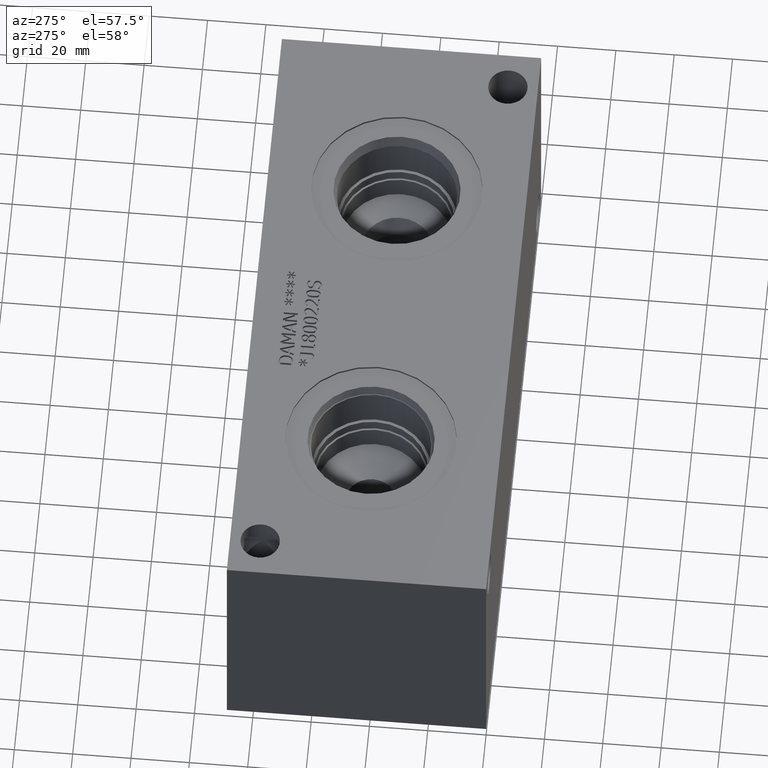
[diagram: clean part render]
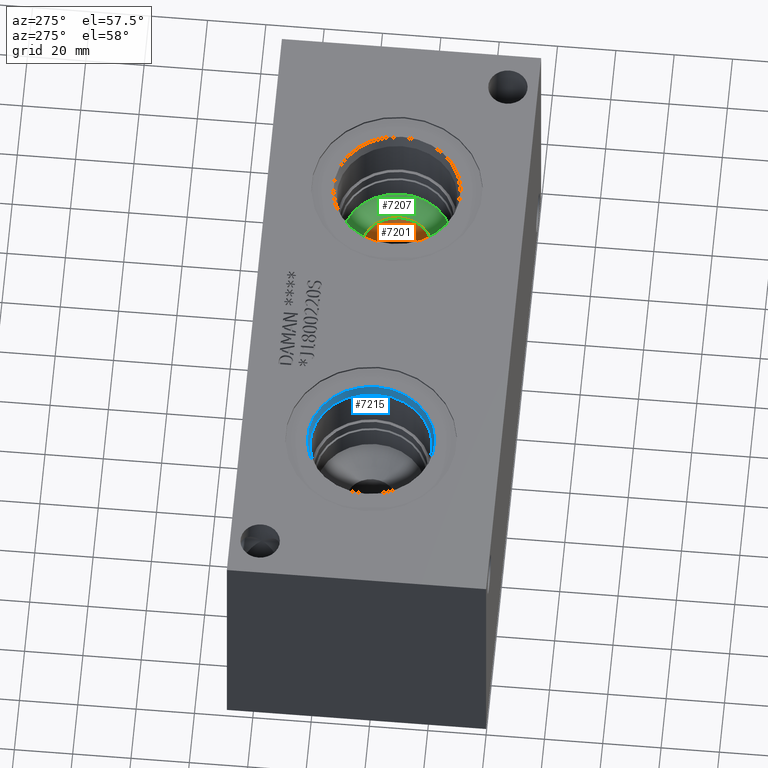
[diagram: same view with three faces highlighted in distinct colors, each labeled with its STEP entity id]
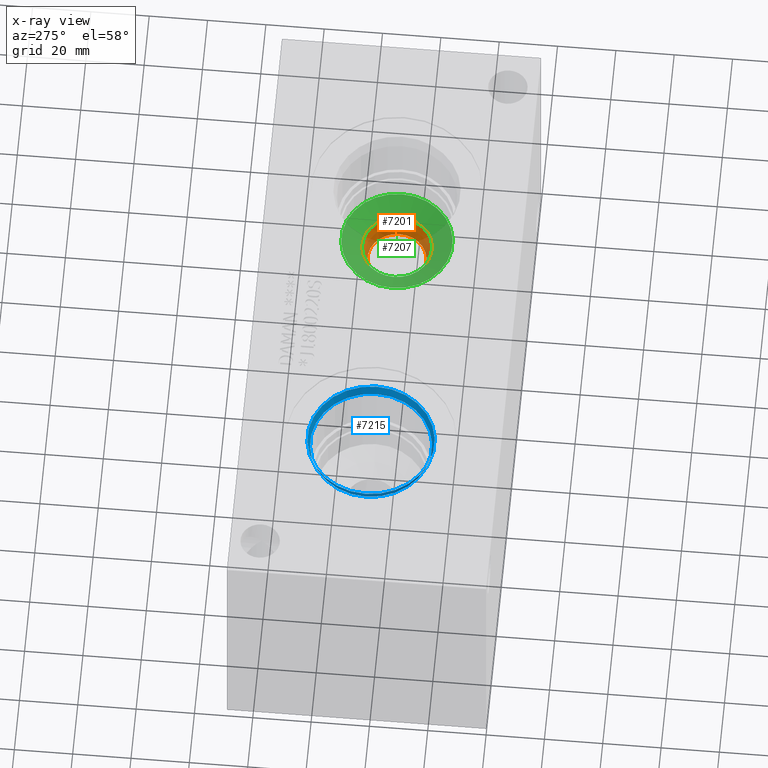
[diagram: x-ray of the same camera — body ghosted, the three highlighted faces saturated]
A machine part, auxiliary view with three faces highlighted in distinct colors.
The next image is the same camera in x-ray (body ghosted, the three faces saturated) — at least one of them is partly hidden behind the body in this view.
Their STEP definitions:

[orange] entity #7201 — the highlighted conical surface has half-angle 15 deg.
#24=CONICAL_SURFACE('',#7545,10.87755,0.261799387799149);
#112=CIRCLE('',#7522,10.059133827333);
#127=CIRCLE('',#7546,12.0409831087152);
#863=FACE_OUTER_BOUND('',#1267,.T.);
#1267=EDGE_LOOP('',(#6218,#6219,#6220,#6221));
#1970=LINE('',#12317,#2661);
#2661=VECTOR('',#8880,10.87755);
#3303=VERTEX_POINT('',#12269);
#3318=VERTEX_POINT('',#12315);
#4276=EDGE_CURVE('',#3303,#3303,#112,.T.);
#4297=EDGE_CURVE('',#3318,#3318,#127,.T.);
#4298=EDGE_CURVE('',#3318,#3303,#1970,.T.);
#6218=ORIENTED_EDGE('',*,*,#4297,.F.);
#6219=ORIENTED_EDGE('',*,*,#4298,.T.);
#6220=ORIENTED_EDGE('',*,*,#4276,.T.);
#6221=ORIENTED_EDGE('',*,*,#4298,.F.);
#7201=ADVANCED_FACE('',(#863),#24,.F.);
#7522=AXIS2_PLACEMENT_3D('',#12271,#8824,#8825);
#7545=AXIS2_PLACEMENT_3D('',#12314,#8876,#8877);
#7546=AXIS2_PLACEMENT_3D('',#12316,#8878,#8879);
#8824=DIRECTION('center_axis',(0.,0.,-1.));
#8825=DIRECTION('ref_axis',(1.,0.,0.));
#8876=DIRECTION('center_axis',(0.,0.,1.));
#8877=DIRECTION('ref_axis',(1.,0.,0.));
#8878=DIRECTION('center_axis',(0.,0.,-1.));
#8879=DIRECTION('ref_axis',(1.,0.,0.));
#8880=DIRECTION('',(0.258819045102521,3.16961915143176E-17,-0.965925826289068));
#12269=CARTESIAN_POINT('',(148.690866172667,44.45,44.45));
#12271=CARTESIAN_POINT('Origin',(158.75,44.45,44.45));
#12314=CARTESIAN_POINT('Origin',(158.75,44.45,47.5043707381292));
#12315=CARTESIAN_POINT('',(146.709016891285,44.45,51.8463622110621));
#12316=CARTESIAN_POINT('Origin',(158.75,44.45,51.8463622110621));
#12317=CARTESIAN_POINT('',(147.87245,44.45,47.5043707381292));

[blue] entity #7215 — the highlighted conical surface has half-angle 15 deg.
#28=CONICAL_SURFACE('',#7578,21.31695,0.261799389532319);
#144=CIRCLE('',#7576,21.7551);
#145=CIRCLE('',#7577,21.7551);
#146=CIRCLE('',#7579,20.8788);
#147=CIRCLE('',#7580,20.8788);
#877=FACE_OUTER_BOUND('',#1284,.T.);
#1284=EDGE_LOOP('',(#6284,#6285,#6286,#6287,#6288,#6289));
#1981=LINE('',#12379,#2672);
#2672=VECTOR('',#8955,21.31695);
#3335=VERTEX_POINT('',#12373);
#3336=VERTEX_POINT('',#12374);
#3337=VERTEX_POINT('',#12378);
#3338=VERTEX_POINT('',#12380);
#4325=EDGE_CURVE('',#3335,#3336,#144,.T.);
#4326=EDGE_CURVE('',#3336,#3335,#145,.T.);
#4327=EDGE_CURVE('',#3336,#3337,#1981,.T.);
#4328=EDGE_CURVE('',#3337,#3338,#146,.T.);
#4329=EDGE_CURVE('',#3338,#3337,#147,.T.);
#6284=ORIENTED_EDGE('',*,*,#4325,.F.);
#6285=ORIENTED_EDGE('',*,*,#4326,.F.);
#6286=ORIENTED_EDGE('',*,*,#4327,.T.);
#6287=ORIENTED_EDGE('',*,*,#4328,.T.);
#6288=ORIENTED_EDGE('',*,*,#4329,.T.);
#6289=ORIENTED_EDGE('',*,*,#4327,.F.);
#7215=ADVANCED_FACE('',(#877),#28,.F.);
#7576=AXIS2_PLACEMENT_3D('',#12375,#8949,#8950);
#7577=AXIS2_PLACEMENT_3D('',#12376,#8951,#8952);
#7578=AXIS2_PLACEMENT_3D('',#12377,#8953,#8954);
#7579=AXIS2_PLACEMENT_3D('',#12381,#8956,#8957);
#7580=AXIS2_PLACEMENT_3D('',#12382,#8958,#8959);
#8949=DIRECTION('center_axis',(0.,0.,-1.));
#8950=DIRECTION('ref_axis',(1.,0.,0.));
#8951=DIRECTION('center_axis',(0.,0.,-1.));
#8952=DIRECTION('ref_axis',(1.,0.,0.));
#8953=DIRECTION('center_axis',(0.,0.,1.));
#8954=DIRECTION('ref_axis',(1.,0.,0.));
#8955=DIRECTION('',(0.258819046776634,-3.16961917193374E-17,-0.965925825840491));
#8956=DIRECTION('center_axis',(0.,0.,-1.));
#8957=DIRECTION('ref_axis',(1.,0.,0.));
#8958=DIRECTION('center_axis',(0.,0.,-1.));
#8959=DIRECTION('ref_axis',(1.,0.,0.));
#12373=CARTESIAN_POINT('',(78.9051,44.45,88.1126));
#12374=CARTESIAN_POINT('',(35.3949,44.45,88.1126));
#12375=CARTESIAN_POINT('Origin',(57.15,44.45,88.1126));
#12376=CARTESIAN_POINT('Origin',(57.15,44.45,88.1126));
#12377=CARTESIAN_POINT('Origin',(57.15,44.45,86.47740195));
#12378=CARTESIAN_POINT('',(36.2712,44.45,84.8422039));
#12379=CARTESIAN_POINT('',(35.83305,44.45,86.47740195));
#12380=CARTESIAN_POINT('',(78.0288,44.45,84.8422039));
#12381=CARTESIAN_POINT('Origin',(57.15,44.45,84.8422039));
#12382=CARTESIAN_POINT('Origin',(57.15,44.45,84.8422039));

[green] entity #7207 — the highlighted conical surface has half-angle 60 deg.
#26=CONICAL_SURFACE('',#7558,9.525,1.0471975511966);
#127=CIRCLE('',#7546,12.0409831087152);
#134=CIRCLE('',#7559,19.05);
#135=CIRCLE('',#7560,19.05);
#869=FACE_OUTER_BOUND('',#1274,.T.);
#1274=EDGE_LOOP('',(#6246,#6247,#6248,#6249,#6250));
#1975=LINE('',#12343,#2666);
#2666=VECTOR('',#8911,9.525);
#3318=VERTEX_POINT('',#12315);
#3325=VERTEX_POINT('',#12340);
#3326=VERTEX_POINT('',#12341);
#4297=EDGE_CURVE('',#3318,#3318,#127,.T.);
#4309=EDGE_CURVE('',#3325,#3326,#134,.T.);
#4310=EDGE_CURVE('',#3326,#3318,#1975,.T.);
#4311=EDGE_CURVE('',#3326,#3325,#135,.T.);
#6246=ORIENTED_EDGE('',*,*,#4309,.T.);
#6247=ORIENTED_EDGE('',*,*,#4310,.T.);
#6248=ORIENTED_EDGE('',*,*,#4297,.T.);
#6249=ORIENTED_EDGE('',*,*,#4310,.F.);
#6250=ORIENTED_EDGE('',*,*,#4311,.T.);
#7207=ADVANCED_FACE('',(#869),#26,.F.);
#7546=AXIS2_PLACEMENT_3D('',#12316,#8878,#8879);
#7558=AXIS2_PLACEMENT_3D('',#12339,#8907,#8908);
#7559=AXIS2_PLACEMENT_3D('',#12342,#8909,#8910);
#7560=AXIS2_PLACEMENT_3D('',#12344,#8912,#8913);
#8878=DIRECTION('center_axis',(0.,0.,-1.));
#8879=DIRECTION('ref_axis',(1.,0.,0.));
#8907=DIRECTION('center_axis',(0.,0.,1.));
#8908=DIRECTION('ref_axis',(1.,0.,0.));
#8909=DIRECTION('center_axis',(0.,0.,1.));
#8910=DIRECTION('ref_axis',(1.,0.,0.));
#8911=DIRECTION('',(0.866025403784439,1.06057523872491E-16,-0.5));
#8912=DIRECTION('center_axis',(0.,0.,1.));
#8913=DIRECTION('ref_axis',(1.,0.,0.));
#12315=CARTESIAN_POINT('',(146.709016891285,44.45,51.8463622110621));
#12316=CARTESIAN_POINT('Origin',(158.75,44.45,51.8463622110621));
#12339=CARTESIAN_POINT('Origin',(158.75,44.45,50.3937586859688));
#12340=CARTESIAN_POINT('',(177.8,44.45,55.89302));
#12341=CARTESIAN_POINT('',(139.7,44.45,55.89302));
#12342=CARTESIAN_POINT('Origin',(158.75,44.45,55.89302));
#12343=CARTESIAN_POINT('',(149.225,44.45,50.3937586859688));
#12344=CARTESIAN_POINT('Origin',(158.75,44.45,55.89302));